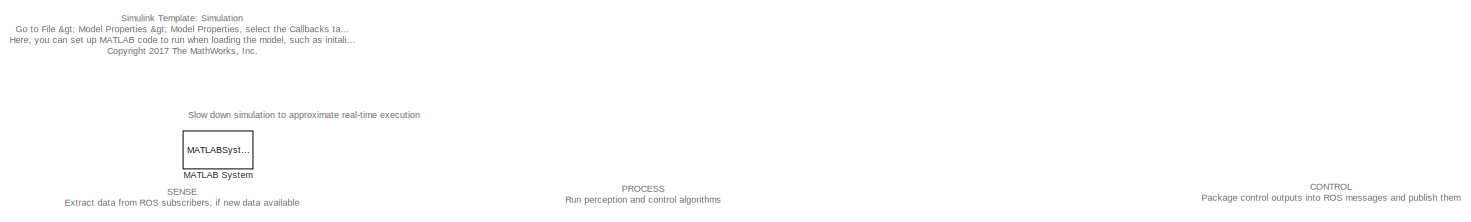
[diagram: root canvas - part 1/2, full width, top band]
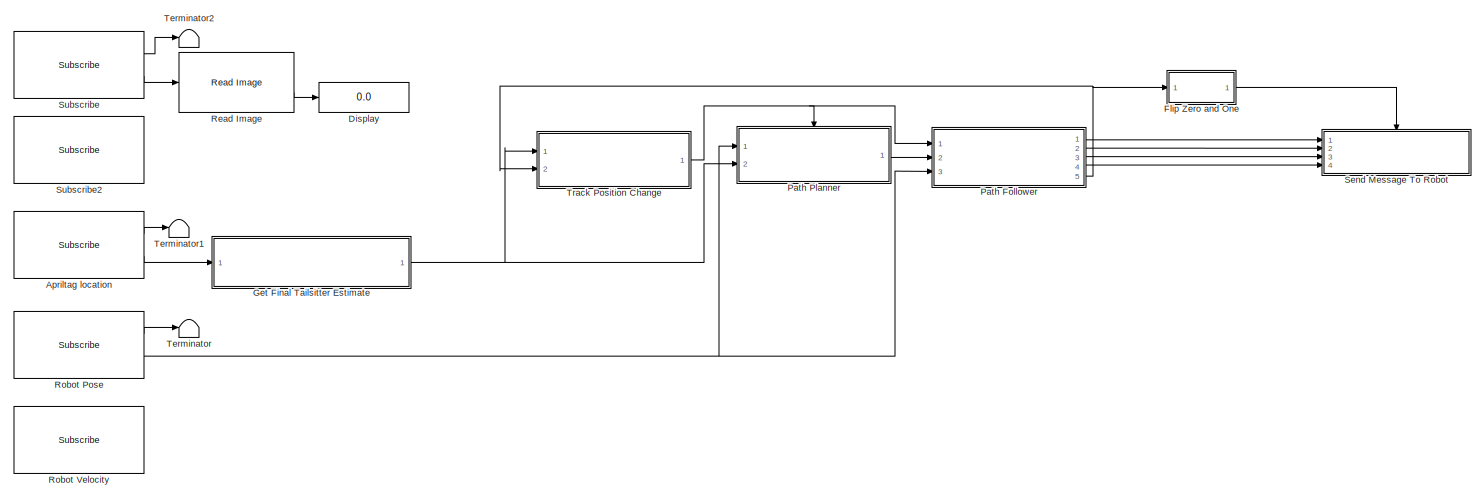
[diagram: root canvas - part 2/2, full width, middle band]
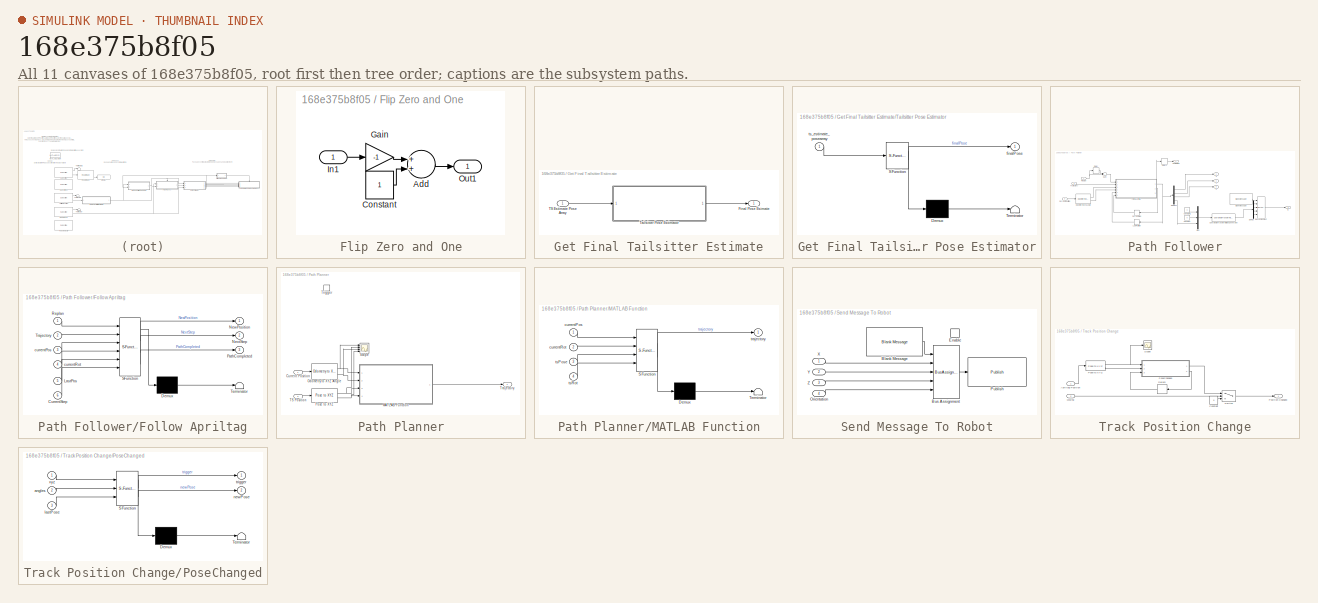
[diagram: thumbnail index - all 11 canvases of the model, root first then tree order]
MODEL slx_168e375b8f05
KIND model
CONFIG AbsTol = auto
CONFIG EnableMultiTasking = off
CONFIG FixedStep = 0.01
CONFIG InitFcn = loadRobot
CONFIG MaxStep = auto
CONFIG MinStep = auto
CONFIG RelTol = 1e-3
CONFIG SampleTimeConstraint = Unconstrained
CONFIG Solver = FixedStepAuto
CONFIG SolverName = FixedStepAuto
CONFIG StartTime = 0.0
CONFIG StopTime = inf
WORKSPACE source: MAT-file member
WORKSPACE SL_ROS_VariableLengthArrays_MaxSizes: struct (value not decoded)
BLOCK [Reference] Apriltag location  REF=robotlib/Subscribe
  Ports = [0, 2]
  SourceBlock = robotlib/Subscribe
  SourceLibraryInfo = This block requires Robotics System Toolbox
  SourceProductBaseCode = RO
  SourceProductName = Robotics System Toolbox
  SourceType = ROS Subscribe
BLOCK [Display] Display
  Decimation = 1
  Ports = [1]
BLOCK [SubSystem] Flip Zero and One
  Ports = [1, 1]
  RequestExecContextInheritance = off
BLOCK [Sum] Flip Zero and One/Add
  InputSameDT = off
  OutDataTypeStr = Inherit: Inherit via internal rule
  Ports = [2, 1]
  SaturateOnIntegerOverflow = off
BLOCK [Constant] Flip Zero and One/Constant
BLOCK [Gain] Flip Zero and One/Gain
  Gain = -1
  OutDataTypeStr = Inherit: Inherit via internal rule
  ParamDataTypeStr = Inherit: Inherit via internal rule
  SaturateOnIntegerOverflow = off
BLOCK [Inport] Flip Zero and One/In1
  IconDisplay = Port number
BLOCK [Outport] Flip Zero and One/Out1
  IconDisplay = Port number
BLOCK [SubSystem] Get Final Tailsitter Estimate
  Ports = [1, 1]
  RequestExecContextInheritance = off
BLOCK [Outport] Get Final Tailsitter Estimate/Final Pose Esimate
  IconDisplay = Port number
BLOCK [Inport] Get Final Tailsitter Estimate/TS Estimate Pose Array
  IconDisplay = Port number
BLOCK [SubSystem] Get Final Tailsitter Estimate/Tailsitter Pose Estimator
  ErrorFcn = Stateflow.Translate.translate
  PermitHierarchicalResolution = ExplicitOnly
  Ports = [1, 1]
  RequestExecContextInheritance = off
  SFBlockType = MATLAB Function
  TreatAsAtomicUnit = on
BLOCK [Demux] Get Final Tailsitter Estimate/Tailsitter Pose Estimator/ Demux 
  Outputs = 1
  Ports = [1, 1]
BLOCK [S-Function] Get Final Tailsitter Estimate/Tailsitter Pose Estimator/ SFunction 
  EnableBusSupport = on
  FunctionName = sf_sfun
  PortCounts = [1 2]
  Ports = [1, 2]
  SFcnIsStateOwnerBlock = off
  SFunctionDeploymentMode = off
  Tag = Stateflow S-Function hummingbird 4
BLOCK [Terminator] Get Final Tailsitter Estimate/Tailsitter Pose Estimator/ Terminator 
BLOCK [Outport] Get Final Tailsitter Estimate/Tailsitter Pose Estimator/finalPose
  IconDisplay = Port number
BLOCK [Inport] Get Final Tailsitter Estimate/Tailsitter Pose Estimator/ts_estimate_posearray
  IconDisplay = Port number
BLOCK [MATLABSystem] MATLAB System
  MaskDisplay = disp('Rate Control');
  MaskType = ExampleHelperSimulationRateControl
  Ports = []
  SampleTime = sampleTime
  System = ExampleHelperSimulationRateControl
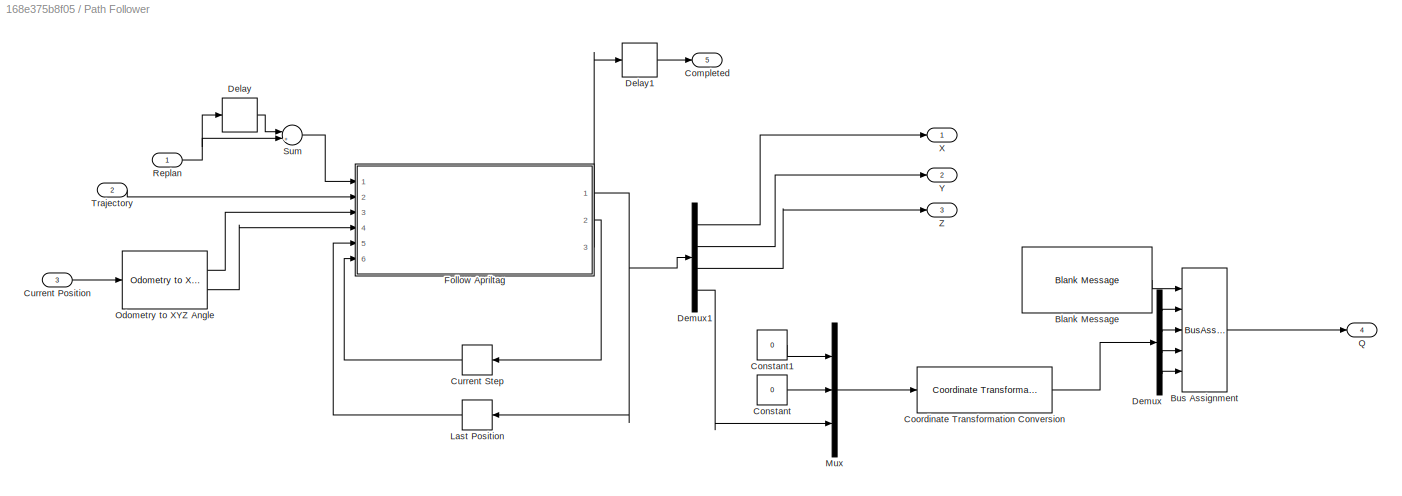
BLOCK [SubSystem] Path Follower
  Ports = [3, 5]
  RequestExecContextInheritance = off
BLOCK [Reference] Path Follower/Blank Message  REF=robotlib/Blank Message
  Ports = [0, 1]
  SourceBlock = robotlib/Blank Message
  SourceLibraryInfo = This block requires Robotics System Toolbox
  SourceProductBaseCode = RO
  SourceProductName = Robotics System Toolbox
  SourceType = ROS Blank Message
BLOCK [BusAssignment] Path Follower/Bus Assignment
  AssignedSignals = X,Y,Z,W
  Ports = [5, 1]
BLOCK [Outport] Path Follower/Completed
  IconDisplay = Port number
  Port = 5
BLOCK [Constant] Path Follower/Constant
  Value = 0
BLOCK [Constant] Path Follower/Constant1
  Value = 0
BLOCK [Reference] Path Follower/Coordinate Transformation Conversion  REF=robotcorelib/Coordinate Transformation Conversion
  Ports = [1, 1]
  SourceBlock = robotcorelib/Coordinate Transformation Conversion
  SourceProductBaseCode = RO
  SourceProductName = Robotics System Toolbox
  SourceType = robotics.slcore.internal.block.CoordinateTransformationConversion
BLOCK [Inport] Path Follower/Current Position
  IconDisplay = Port number
  Port = 3
BLOCK [Memory] Path Follower/Current Step
  InitialCondition = 1
BLOCK [Delay] Path Follower/Delay
  DelayLength = 1
  InputPortMap = u0
  Ports = [1, 1]
BLOCK [Delay] Path Follower/Delay1
  DelayLength = 1
  InitialCondition = 1
  InputPortMap = u0
  Ports = [1, 1]
BLOCK [Demux] Path Follower/Demux
  DisplayOption = bar
  Ports = [1, 4]
BLOCK [Demux] Path Follower/Demux1
  DisplayOption = bar
  Ports = [1, 4]
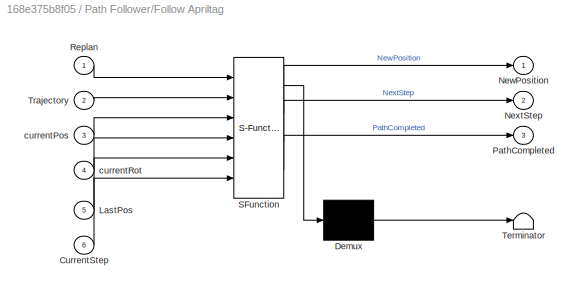
BLOCK [SubSystem] Path Follower/Follow Apriltag
  ErrorFcn = Stateflow.Translate.translate
  PermitHierarchicalResolution = ExplicitOnly
  Ports = [6, 3]
  RequestExecContextInheritance = off
  SFBlockType = MATLAB Function
  TreatAsAtomicUnit = on
BLOCK [Demux] Path Follower/Follow Apriltag/ Demux 
  Outputs = 1
  Ports = [1, 1]
BLOCK [S-Function] Path Follower/Follow Apriltag/ SFunction 
  EnableBusSupport = on
  FunctionName = sf_sfun
  Parameters = minTrackRot,minTrackTrans
  PortCounts = [6 4]
  Ports = [6, 4]
  SFcnIsStateOwnerBlock = off
  SFunctionDeploymentMode = off
  Tag = Stateflow S-Function hummingbird 3
BLOCK [Terminator] Path Follower/Follow Apriltag/ Terminator 
BLOCK [Inport] Path Follower/Follow Apriltag/CurrentStep
  IconDisplay = Port number
  Port = 6
BLOCK [Inport] Path Follower/Follow Apriltag/LastPos
  IconDisplay = Port number
  Port = 5
BLOCK [Outport] Path Follower/Follow Apriltag/NewPosition
  IconDisplay = Port number
BLOCK [Outport] Path Follower/Follow Apriltag/NextStep
  IconDisplay = Port number
  Port = 2
BLOCK [Outport] Path Follower/Follow Apriltag/PathCompleted
  IconDisplay = Port number
  Port = 3
BLOCK [Inport] Path Follower/Follow Apriltag/Replan
  IconDisplay = Port number
BLOCK [Inport] Path Follower/Follow Apriltag/Trajectory
  IconDisplay = Port number
  Port = 2
BLOCK [Inport] Path Follower/Follow Apriltag/currentPos
  IconDisplay = Port number
  Port = 3
BLOCK [Inport] Path Follower/Follow Apriltag/currentRot
  IconDisplay = Port number
  Port = 4
BLOCK [Memory] Path Follower/Last Position
  InitialCondition = [0,0,0,0]
BLOCK [Mux] Path Follower/Mux
  DisplayOption = bar
  Inputs = 3
  Ports = [3, 1]
BLOCK [Reference] Path Follower/Odometry to XYZ Angle  REF=hummingbirdLibrary/Odometry to XYZ Angle
  Ports = [1, 2]
  SourceBlock = hummingbirdLibrary/Odometry to XYZ Angle
  SourceType = SubSystem
BLOCK [Outport] Path Follower/Q
  IconDisplay = Port number
  Port = 4
BLOCK [Inport] Path Follower/Replan
  IconDisplay = Port number
BLOCK [Sum] Path Follower/Sum
  IconShape = round
  InputSameDT = off
  Inputs = |++|
  OutDataTypeStr = Inherit: Inherit via internal rule
  Ports = [2, 1]
  SaturateOnIntegerOverflow = off
BLOCK [Inport] Path Follower/Trajectory
  IconDisplay = Port number
  Port = 2
  SampleTime = 0.01
  VarSizeSig = Yes
BLOCK [Outport] Path Follower/X
  IconDisplay = Port number
BLOCK [Outport] Path Follower/Y
  IconDisplay = Port number
  Port = 2
BLOCK [Outport] Path Follower/Z
  IconDisplay = Port number
  Port = 3
BLOCK [SubSystem] Path Planner
  Ports = [2, 1, 0, 1]
  RequestExecContextInheritance = off
  TreatAsAtomicUnit = on
BLOCK [Inport] Path Planner/Current Position
  IconDisplay = Port number
BLOCK [SubSystem] Path Planner/MATLAB Function
  ErrorFcn = Stateflow.Translate.translate
  PermitHierarchicalResolution = ExplicitOnly
  Ports = [4, 1]
  RequestExecContextInheritance = off
  SFBlockType = MATLAB Function
  TreatAsAtomicUnit = on
BLOCK [Demux] Path Planner/MATLAB Function/ Demux 
  Outputs = 1
  Ports = [1, 1]
BLOCK [S-Function] Path Planner/MATLAB Function/ SFunction 
  EnableBusSupport = on
  FunctionName = sf_sfun
  PortCounts = [4 2]
  Ports = [4, 2]
  SFcnIsStateOwnerBlock = off
  SFunctionDeploymentMode = off
  Tag = Stateflow S-Function hummingbird 2
BLOCK [Terminator] Path Planner/MATLAB Function/ Terminator 
BLOCK [Inport] Path Planner/MATLAB Function/currentPos
  IconDisplay = Port number
BLOCK [Inport] Path Planner/MATLAB Function/currentRot
  IconDisplay = Port number
  Port = 2
BLOCK [Outport] Path Planner/MATLAB Function/trajectory
  IconDisplay = Port number
BLOCK [Inport] Path Planner/MATLAB Function/tsPose
  IconDisplay = Port number
  Port = 3
BLOCK [Inport] Path Planner/MATLAB Function/tsRot
  IconDisplay = Port number
  Port = 4
BLOCK [Reference] Path Planner/Odometry to XYZ Angle  REF=hummingbirdLibrary/Odometry to XYZ Angle
  Ports = [1, 2]
  SourceBlock = hummingbirdLibrary/Odometry to XYZ Angle
  SourceType = SubSystem
BLOCK [Reference] Path Planner/Pose to XYZ  REF=hummingbirdLibrary/Pose to XYZ
  Ports = [1, 2]
  SourceBlock = hummingbirdLibrary/Pose to XYZ
  SourceType = SubSystem
BLOCK [Scope] Path Planner/Scope
  Floating = off
  NumInputPorts = 4
  Ports = [4]
  ScopeSpecificationString = Simulink.scopes.TimeScopeBlockCfg('CurrentConfiguration', extmgr.ConfigurationSet(extmgr.Configuration('Core','General UI',true),extmgr.Configuration('Core','Source UI',true),extmgr.Configuration('Sources','WiredSimulink',true),extmgr.Configuration('Visuals','Time Domain',true,'SerializedDisplays',{struct('MinYLimReal','-2.76143','MaxYLimReal','3.79213','YLabelReal','','MinYLimMag','0.00000','MaxY...<+1594ch>
BLOCK [Inport] Path Planner/TS Position
  IconDisplay = Port number
  Port = 2
BLOCK [Outport] Path Planner/Trajectory
  IconDisplay = Port number
BLOCK [TriggerPort] Path Planner/Trigger
  InitialTriggerSignalState = zero
  Ports = []
  StatesWhenEnabling = held
  VariantControl = Variant
BLOCK [Reference] Read Image  REF=robotlib/Read Image
  Ports = [1, 2]
  SourceBlock = robotlib/Read Image
  SourceLibraryInfo = This block requires Robotics System Toolbox
  SourceProductBaseCode = RO
  SourceProductName = Robotics System Toolbox
  SourceType = robotics.slros.internal.block.ReadImage
BLOCK [Reference] Robot Pose  REF=robotlib/Subscribe
  Ports = [0, 2]
  SourceBlock = robotlib/Subscribe
  SourceLibraryInfo = This block requires Robotics System Toolbox
  SourceProductBaseCode = RO
  SourceProductName = Robotics System Toolbox
  SourceType = ROS Subscribe
BLOCK [Reference] Robot Velocity  REF=robotlib/Subscribe
  Ports = [0, 2]
  SourceBlock = robotlib/Subscribe
  SourceLibraryInfo = This block requires Robotics System Toolbox
  SourceProductBaseCode = RO
  SourceProductName = Robotics System Toolbox
  SourceType = ROS Subscribe
BLOCK [SubSystem] Send Message To Robot
  Ports = [4, 0, 1]
  RequestExecContextInheritance = off
BLOCK [Reference] Send Message To Robot/Blank Message  REF=robotlib/Blank Message
  Ports = [0, 1]
  SourceBlock = robotlib/Blank Message
  SourceLibraryInfo = This block requires Robotics System Toolbox
  SourceProductBaseCode = RO
  SourceProductName = Robotics System Toolbox
  SourceType = ROS Blank Message
BLOCK [BusAssignment] Send Message To Robot/Bus Assignment
  AssignedSignals = Pose.Position.X,Pose.Position.Y,Pose.Position.Z,Pose.Orientation
  Ports = [5, 1]
BLOCK [EnablePort] Send Message To Robot/Enable
  Ports = []
BLOCK [Inport] Send Message To Robot/Orientation
  IconDisplay = Port number
  Port = 4
BLOCK [Reference] Send Message To Robot/Publish  REF=robotlib/Publish
  Ports = [1]
  SourceBlock = robotlib/Publish
  SourceLibraryInfo = This block requires Robotics System Toolbox
  SourceProductBaseCode = RO
  SourceProductName = Robotics System Toolbox
  SourceType = ROS Publish
BLOCK [Inport] Send Message To Robot/X
  IconDisplay = Port number
BLOCK [Inport] Send Message To Robot/Y
  IconDisplay = Port number
  Port = 2
BLOCK [Inport] Send Message To Robot/Z
  IconDisplay = Port number
  Port = 3
BLOCK [Reference] Subscribe  REF=robotlib/Subscribe
  Ports = [0, 2]
  SourceBlock = robotlib/Subscribe
  SourceLibraryInfo = This block requires Robotics System Toolbox
  SourceProductBaseCode = RO
  SourceProductName = Robotics System Toolbox
  SourceType = ROS Subscribe
BLOCK [Reference] Subscribe2  REF=robotlib/Subscribe
  Commented = on
  Ports = [0, 2]
  SourceBlock = robotlib/Subscribe
  SourceLibraryInfo = This block requires Robotics System Toolbox
  SourceProductBaseCode = RO
  SourceProductName = Robotics System Toolbox
  SourceType = ROS Subscribe
BLOCK [Terminator] Terminator
BLOCK [Terminator] Terminator1
BLOCK [Terminator] Terminator2
BLOCK [SubSystem] Track Position Change
  Ports = [2, 1]
  RequestExecContextInheritance = off
BLOCK [Inport] Track Position Change/Apriltag Position
  IconDisplay = Port number
BLOCK [Constant] Track Position Change/Constant
  Value = 0
BLOCK [Delay] Track Position Change/Delay5
  DelayLength = 1
  InitialCondition = [0 0 0 0]
  InputPortMap = u0
  Ports = [1, 1]
  UseCircularBuffer = on
BLOCK [Inport] Track Position Change/Moving
  IconDisplay = Port number
  Port = 2
BLOCK [Reference] Track Position Change/Pose to XYZ  REF=hummingbirdLibrary/Pose to XYZ
  Ports = [1, 2]
  SourceBlock = hummingbirdLibrary/Pose to XYZ
  SourceType = SubSystem
BLOCK [SubSystem] Track Position Change/PoseChanged
  ErrorFcn = Stateflow.Translate.translate
  PermitHierarchicalResolution = ExplicitOnly
  Ports = [3, 2]
  RequestExecContextInheritance = off
  SFBlockType = MATLAB Function
  TreatAsAtomicUnit = on
BLOCK [Demux] Track Position Change/PoseChanged/ Demux 
  Outputs = 1
  Ports = [1, 1]
BLOCK [S-Function] Track Position Change/PoseChanged/ SFunction 
  EnableBusSupport = on
  FunctionName = sf_sfun
  Parameters = minRot,minTrans
  PortCounts = [3 3]
  Ports = [3, 3]
  SFcnIsStateOwnerBlock = off
  SFunctionDeploymentMode = off
  Tag = Stateflow S-Function hummingbird 1
BLOCK [Terminator] Track Position Change/PoseChanged/ Terminator 
BLOCK [Inport] Track Position Change/PoseChanged/angles
  IconDisplay = Port number
  Port = 2
BLOCK [Inport] Track Position Change/PoseChanged/lastPose
  IconDisplay = Port number
  Port = 3
BLOCK [Outport] Track Position Change/PoseChanged/newPose
  IconDisplay = Port number
  Port = 2
BLOCK [Outport] Track Position Change/PoseChanged/trigger
  IconDisplay = Port number
BLOCK [Inport] Track Position Change/PoseChanged/xyz
  IconDisplay = Port number
BLOCK [Outport] Track Position Change/Position Changed
  IconDisplay = Port number
  PortDimensions = 1
BLOCK [Scope] Track Position Change/Scope
  Floating = off
  NumInputPorts = 1
  Ports = [1]
  ScopeSpecificationString = Simulink.scopes.TimeScopeBlockCfg('CurrentConfiguration', extmgr.ConfigurationSet(extmgr.Configuration('Core','General UI',true),extmgr.Configuration('Core','Source UI',true),extmgr.Configuration('Sources','WiredSimulink',true,'DataLoggingVariableName','ScopeData2'),extmgr.Configuration('Visuals','Time Domain',true,'SerializedDisplays',{struct('MinYLimReal','-0.31001','MaxYLimReal','2.78741','YLab...<+1502ch>
BLOCK [Switch] Track Position Change/Switch
  Criteria = u2 > Threshold
  InputSameDT = off
  SaturateOnIntegerOverflow = off
ANNOTATION (root): Simulink Template: Simulation Go to File > Model Properties > Model Properties , select the Callbacks tab, and go to PreLoadFcn . Here, you can set up MATLAB code to run when loading the model, such as initalizing ROS and loading parameters. <copyright redacted>
ANNOTATION (root): CONTROL Package control outputs into ROS messages and publish them
ANNOTATION (root): PROCESS Run perception and control algorithms
ANNOTATION (root): SENSE Extract data from ROS subscribers, if new data available
ANNOTATION (root): Slow down simulation to approximate real-time execution
LINE Apriltag location:1 -> Terminator1:1
LINE Apriltag location:2 -> Get Final Tailsitter Estimate:1
LINE Flip Zero and One/Add:1 -> Flip Zero and One/Out1:1
LINE Flip Zero and One/Constant:1 -> Flip Zero and One/Add:2
LINE Flip Zero and One/Gain:1 -> Flip Zero and One/Add:1
LINE Flip Zero and One/In1:1 -> Flip Zero and One/Gain:1
LINE Flip Zero and One:1 -> Send Message To Robot:enable
LINE Get Final Tailsitter Estimate/TS Estimate Pose Array:1 -> Get Final Tailsitter Estimate/Tailsitter Pose Estimator:1
LINE Get Final Tailsitter Estimate/Tailsitter Pose Estimator:1 -> Get Final Tailsitter Estimate/Final Pose Esimate:1
NET Get Final Tailsitter Estimate:1 -> Path Planner:2, Track Position Change:1
LINE Path Follower/Blank Message:1 -> Path Follower/Bus Assignment:1
LINE Path Follower/Bus Assignment:1 -> Path Follower/Q:1
LINE Path Follower/Constant1:1 -> Path Follower/Mux:1
LINE Path Follower/Constant:1 -> Path Follower/Mux:2
LINE Path Follower/Coordinate Transformation Conversion:1 -> Path Follower/Demux:1
LINE Path Follower/Current Position:1 -> Path Follower/Odometry to XYZ Angle:1
LINE Path Follower/Current Step:1 -> Path Follower/Follow Apriltag:6
LINE Path Follower/Delay1:1 -> Path Follower/Completed:1
LINE Path Follower/Delay:1 -> Path Follower/Sum:1
LINE Path Follower/Demux1:1 -> Path Follower/X:1
LINE Path Follower/Demux1:2 -> Path Follower/Y:1
LINE Path Follower/Demux1:3 -> Path Follower/Z:1
LINE Path Follower/Demux1:4 -> Path Follower/Mux:3
LINE Path Follower/Demux:1 -> Path Follower/Bus Assignment:2
LINE Path Follower/Demux:2 -> Path Follower/Bus Assignment:3
LINE Path Follower/Demux:3 -> Path Follower/Bus Assignment:4
LINE Path Follower/Demux:4 -> Path Follower/Bus Assignment:5
NET Path Follower/Follow Apriltag:1 -> Path Follower/Demux1:1, Path Follower/Last Position:1
LINE Path Follower/Follow Apriltag:2 -> Path Follower/Current Step:1
LINE Path Follower/Follow Apriltag:3 -> Path Follower/Delay1:1
LINE Path Follower/Last Position:1 -> Path Follower/Follow Apriltag:5
LINE Path Follower/Mux:1 -> Path Follower/Coordinate Transformation Conversion:1
LINE Path Follower/Odometry to XYZ Angle:1 -> Path Follower/Follow Apriltag:3
LINE Path Follower/Odometry to XYZ Angle:2 -> Path Follower/Follow Apriltag:4
NET Path Follower/Replan:1 -> Path Follower/Delay:1, Path Follower/Sum:2
LINE Path Follower/Sum:1 -> Path Follower/Follow Apriltag:1
LINE Path Follower/Trajectory:1 -> Path Follower/Follow Apriltag:2
LINE Path Follower:1 -> Send Message To Robot:1
LINE Path Follower:2 -> Send Message To Robot:2
LINE Path Follower:3 -> Send Message To Robot:3
LINE Path Follower:4 -> Send Message To Robot:4
NET Path Follower:5 -> Flip Zero and One:1, Track Position Change:2
LINE Path Planner/Current Position:1 -> Path Planner/Odometry to XYZ Angle:1
LINE Path Planner/MATLAB Function:1 -> Path Planner/Trajectory:1
NET Path Planner/Odometry to XYZ Angle:1 -> Path Planner/MATLAB Function:1, Path Planner/Scope:1
NET Path Planner/Odometry to XYZ Angle:2 -> Path Planner/MATLAB Function:2, Path Planner/Scope:3
NET Path Planner/Pose to XYZ:1 -> Path Planner/MATLAB Function:3, Path Planner/Scope:2
NET Path Planner/Pose to XYZ:2 -> Path Planner/MATLAB Function:4, Path Planner/Scope:4
LINE Path Planner/TS Position:1 -> Path Planner/Pose to XYZ:1
LINE Path Planner:1 -> Path Follower:2
LINE Read Image:2 -> Display:1
LINE Robot Pose:1 -> Terminator:1
NET Robot Pose:2 -> Path Follower:3, Path Planner:1
LINE Send Message To Robot/Blank Message:1 -> Send Message To Robot/Bus Assignment:1
LINE Send Message To Robot/Bus Assignment:1 -> Send Message To Robot/Publish:1
LINE Send Message To Robot/Orientation:1 -> Send Message To Robot/Bus Assignment:5
LINE Send Message To Robot/X:1 -> Send Message To Robot/Bus Assignment:2
LINE Send Message To Robot/Y:1 -> Send Message To Robot/Bus Assignment:3
LINE Send Message To Robot/Z:1 -> Send Message To Robot/Bus Assignment:4
LINE Subscribe:1 -> Terminator2:1
LINE Subscribe:2 -> Read Image:1
LINE Track Position Change/Apriltag Position:1 -> Track Position Change/Pose to XYZ:1
LINE Track Position Change/Constant:1 -> Track Position Change/Switch:3
LINE Track Position Change/Delay5:1 -> Track Position Change/PoseChanged:3
LINE Track Position Change/Moving:1 -> Track Position Change/Switch:2
NET Track Position Change/Pose to XYZ:1 -> Track Position Change/PoseChanged:1, Track Position Change/Scope:1
LINE Track Position Change/Pose to XYZ:2 -> Track Position Change/PoseChanged:2
LINE Track Position Change/PoseChanged:1 -> Track Position Change/Switch:1
LINE Track Position Change/PoseChanged:2 -> Track Position Change/Delay5:1
LINE Track Position Change/Switch:1 -> Track Position Change/Position Changed:1
NET Track Position Change:1 -> Path Follower:1, Path Planner:trigger
note: NET lines group one-source signal fan-out (src -> all destinations, sorted); 1:1 wires keep LINE
CHART Track Position Change/PoseChanged states=1 transitions=1
  STATE_LABEL 'eML_blk_kernel()'
  STATE_LABEL 'SCRIPT:\nfunction [trigger, newPose] = PoseChanged(xyz, angles, lastPose, minTrans, minRot)\n    x = xyz(1);\n    y = xyz(2);\n    z = xyz(3);\n    yaw = rad2deg(angles(1));\n    \n    poseTranslated = [x y z yaw];\n    \n    newPose = lastPose;\n    \n    if(norm(lastPose(1,1:3) - poseTranslated(1,1:3)) > minTrans || abs(lastPose(4) - poseTranslated(4)) > minRot)\n        newPose(1,1:4) = poseTranslated;\n   ...<+60ch>'
CHART Path Planner/MATLAB Function states=1 transitions=1
  STATE_LABEL 'eML_blk_kernel()'
  STATE_LABEL 'SCRIPT:\nfunction trajectory = find_path_to_tailsitter(currentPos, currentRot, tsPose, tsRot)\n    trajectory = tailsitter_bezier_path(currentPos, currentRot, tsPose, tsRot, 0.2);\n    plot3(trajectory(:,1), trajectory(:,2), trajectory(:,3));\n    grid minor;\nend'
CHART Path Follower/Follow Apriltag states=1 transitions=1
  STATE_LABEL 'eML_blk_kernel()'
  STATE_LABEL 'SCRIPT:\nfunction [NewPosition, NextStep, PathCompleted] = FollowObject(Replan, Trajectory, currentPos, currentRot, LastPos, CurrentStep, minTrackRot, minTrackTrans)\n\n    Xcur = currentPos(1);\n    Ycur = currentPos(2);\n    Zcur = currentPos(3);\n    Yawcur = currentRot(1);\n    \n    % Set the new position\n    NewPosition = LastPos;\n    if(isequal(LastPos, [0,0,0,0])) \n        NewPosition = [Xcur Ycur...<+621ch>'
CHART Get Final Tailsitter Estimate/Tailsitter Pose Estimator states=1 transitions=1
  STATE_LABEL 'eML_blk_kernel()'
  STATE_LABEL 'SCRIPT:\nfunction finalPose = TailsitterPoseEstimator(ts_estimate_posearray)\n    % Average Only, then set first one to average\n    finalPose = ts_estimate_posearray.Poses(1);\n    \n    count = 1;\n    for i = 1:4\n        if(ts_estimate_posearray.Poses(i).Position.X ~= 0 || ts_estimate_posearray.Poses(i).Position.Y ~= 0 || ts_estimate_posearray.Poses(i).Position.Z ~= 0)\n            ts_estimate_posearr...<+759ch>'
